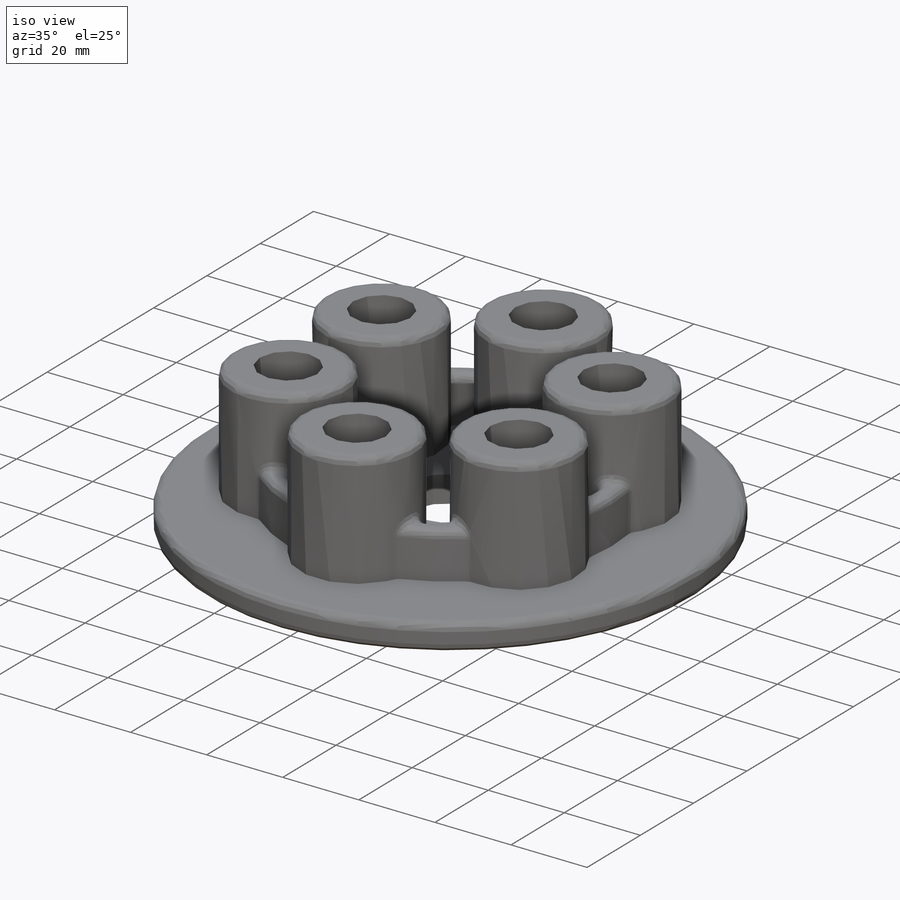
[diagram: iso view]
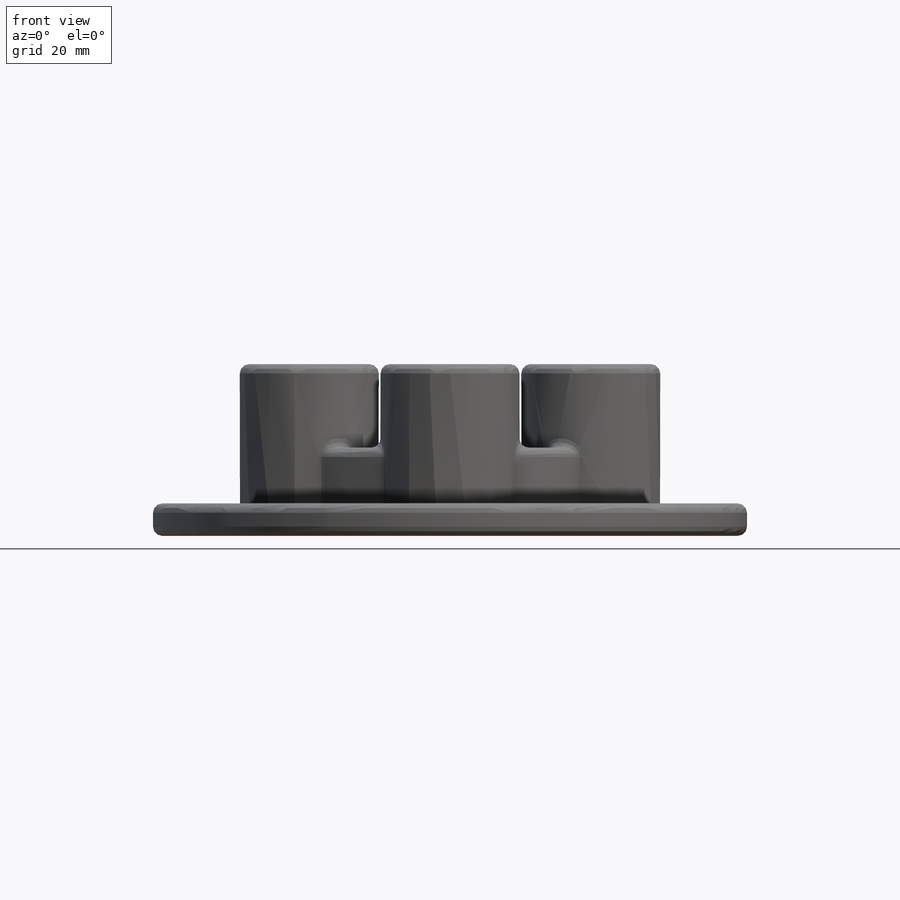
[diagram: front view]
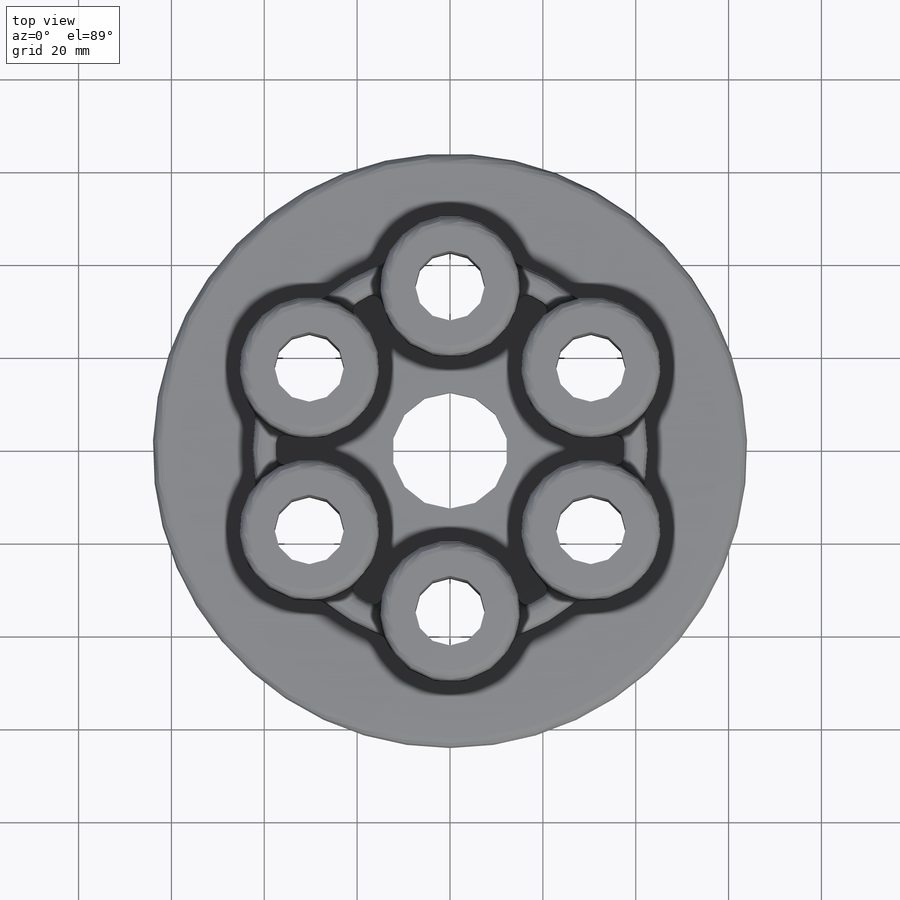
[diagram: top view]
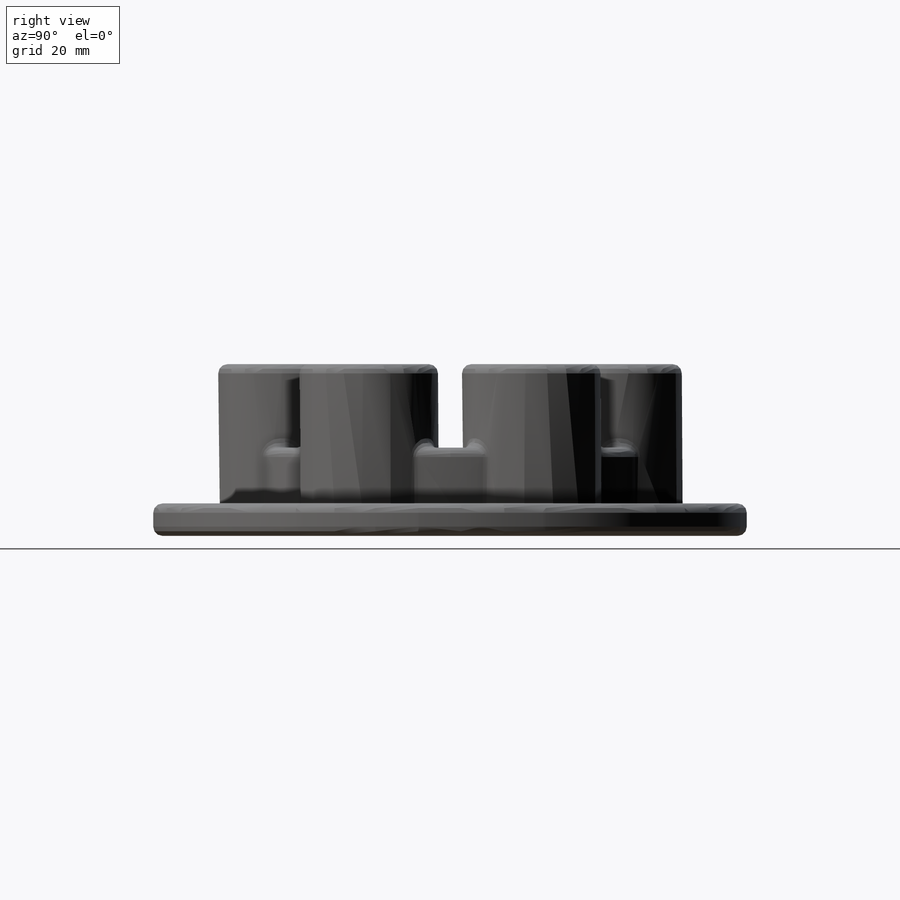
[diagram: right view]
SOLIDWORKS PART (.sldprt)
format: sldprt  version: not decoded by parser v0  size: 454,144 bytes
history: native  units: mm
features: sketch x5, fillet x5, extrude x3, cut_extrude x2, material x1, pattern_circular x1 (+14 scaffold rows collapsed)
feature tree (31):
  scaffold x14  (default folders/planes/origin — collapsed)
  material  "Material <not specified>"
  sketch  "Sketch1"  dims[D1=128.0mm]
  extrude  "Extrude1"  Depth=7mm
  sketch  "Sketch2"  dims[D1=75.0mm D2=5.0mm]
  extrude  "Extrude2"  Depth=12mm
  sketch  "Sketch3"  dims[D1=25.0mm]
  cut_extrude  "Extrude3"  Depth=12mm
  fillet  "Fillet1"  Radius=2mm
  fillet  "Fillet2"  Radius=2mm
  sketch  "Sketch11"  dims[D1=35.0mm D2=35.0mm]
  extrude  "Extrude5"  Depth=30mm
  sketch  "Sketch12"  dims[D1=15.0mm]
  cut_extrude  "Extrude19"  [1 undecoded]
  fillet  "Fillet3"  Radius=2mm
  fillet  "Fillet4"  Radius=2mm
  fillet  "Fillet5"  Radius=2mm
  pattern_circular  "CirPattern1"  Count=6 Angle=360deg
decode coverage: 15 of 16 modeling features carry decoded parameters
note: 1 parameter value undecoded
note: suppression state not decoded; provenance and decode notes live in map.json
